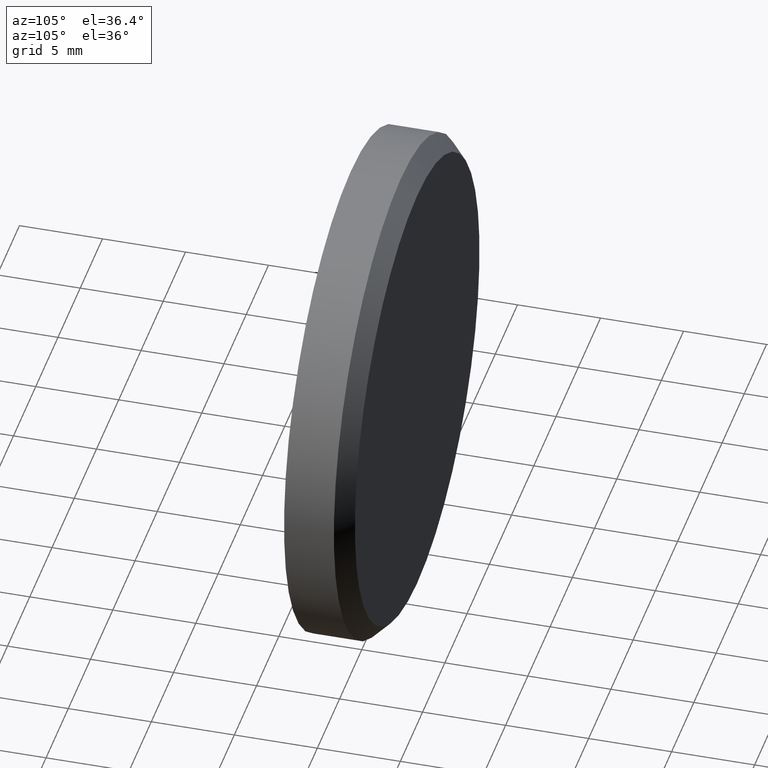
[diagram: clean part render]
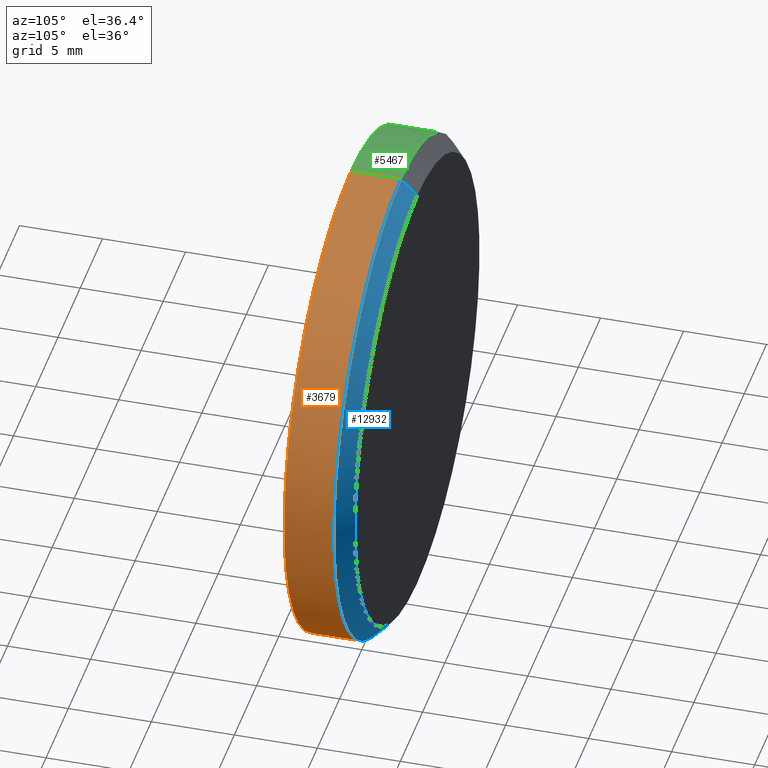
[diagram: same view with three faces highlighted in distinct colors, each labeled with its STEP entity id]
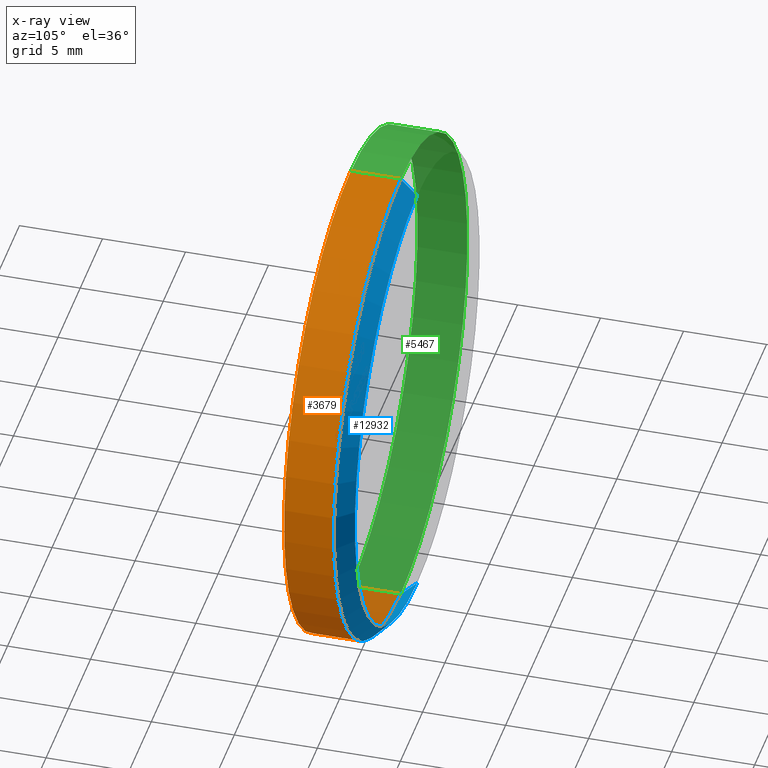
[diagram: x-ray of the same camera — body ghosted, the three highlighted faces saturated]
A machine part, auxiliary view with three faces highlighted in distinct colors.
The next image is the same camera in x-ray (body ghosted, the three faces saturated) — at least one of them is partly hidden behind the body in this view.
Their STEP definitions:

[orange] entity #3679 — the highlighted cylindrical surface (partial cylindrical patch) has radius 15 mm, axis along (-0, -1, -0).
#64 = EDGE_CURVE ( 'NONE', #2117, #8333, #3052, .T. ) ;
#224 = DIRECTION ( 'NONE',  ( 0.000000000000000000, 1.000000000000000000, 0.000000000000000000 ) ) ;
#1088 = ORIENTED_EDGE ( 'NONE', *, *, #7283, .T. ) ;
#1105 = CARTESIAN_POINT ( 'NONE',  ( 0.000000000000000000, 0.9999999999999852340, -15.00000000000000000 ) ) ;
#1200 = DIRECTION ( 'NONE',  ( -0.000000000000000000, -1.000000000000000000, -0.000000000000000000 ) ) ;
#1271 = CARTESIAN_POINT ( 'NONE',  ( 0.000000000000000000, -2.000000000000000000, -15.00000000000000000 ) ) ;
#1667 = AXIS2_PLACEMENT_3D ( 'NONE', #14471, #224, #5039 ) ;
#2117 = VERTEX_POINT ( 'NONE', #12398 ) ;
#2258 = CYLINDRICAL_SURFACE ( 'NONE', #3299, 15.00000000000000000 ) ;
#2356 = ORIENTED_EDGE ( 'NONE', *, *, #9711, .T. ) ;
#2721 = VECTOR ( 'NONE', #8684, 1000.000000000000000 ) ;
#3052 = LINE ( 'NONE', #6025, #12053 ) ;
#3170 = FACE_OUTER_BOUND ( 'NONE', #12584, .T. ) ;
#3299 = AXIS2_PLACEMENT_3D ( 'NONE', #10671, #1200, #9630 ) ;
#3679 = ADVANCED_FACE ( 'NONE', ( #3170 ), #2258, .T. ) ;
#4370 = DIRECTION ( 'NONE',  ( 0.000000000000000000, -1.000000000000000000, 0.000000000000000000 ) ) ;
#5039 = DIRECTION ( 'NONE',  ( 0.000000000000000000, 0.000000000000000000, 1.000000000000000000 ) ) ;
#5825 = AXIS2_PLACEMENT_3D ( 'NONE', #15065, #4370, #13906 ) ;
#6025 = CARTESIAN_POINT ( 'NONE',  ( 1.836970198721029589E-15, 2.000000000000000000, 15.00000000000000000 ) ) ;
#6122 = CIRCLE ( 'NONE', #5825, 15.00000000000000000 ) ;
#6128 = DIRECTION ( 'NONE',  ( -0.000000000000000000, -1.000000000000000000, -0.000000000000000000 ) ) ;
#6189 = CARTESIAN_POINT ( 'NONE',  ( 0.000000000000000000, 2.000000000000000000, -15.00000000000000000 ) ) ;
#6441 = CARTESIAN_POINT ( 'NONE',  ( 1.836970198721029589E-15, -2.000000000000000000, 15.00000000000000000 ) ) ;
#6640 = CIRCLE ( 'NONE', #1667, 15.00000000000000000 ) ;
#7283 = EDGE_CURVE ( 'NONE', #9954, #2117, #6122, .T. ) ;
#8333 = VERTEX_POINT ( 'NONE', #6441 ) ;
#8684 = DIRECTION ( 'NONE',  ( -0.000000000000000000, -1.000000000000000000, -0.000000000000000000 ) ) ;
#9630 = DIRECTION ( 'NONE',  ( 0.000000000000000000, 0.000000000000000000, -1.000000000000000000 ) ) ;
#9711 = EDGE_CURVE ( 'NONE', #8333, #13674, #6640, .T. ) ;
#9954 = VERTEX_POINT ( 'NONE', #1105 ) ;
#10124 = EDGE_CURVE ( 'NONE', #9954, #13674, #11486, .T. ) ;
#10671 = CARTESIAN_POINT ( 'NONE',  ( 0.000000000000000000, 2.000000000000000000, 0.000000000000000000 ) ) ;
#11486 = LINE ( 'NONE', #6189, #2721 ) ;
#12053 = VECTOR ( 'NONE', #6128, 1000.000000000000000 ) ;
#12398 = CARTESIAN_POINT ( 'NONE',  ( 1.836970198721029589E-15, 0.9999999999999852340, 15.00000000000000000 ) ) ;
#12584 = EDGE_LOOP ( 'NONE', ( #1088, #15137, #2356, #15217 ) ) ;
#13674 = VERTEX_POINT ( 'NONE', #1271 ) ;
#13906 = DIRECTION ( 'NONE',  ( 0.000000000000000000, 0.000000000000000000, 1.000000000000000000 ) ) ;
#14471 = CARTESIAN_POINT ( 'NONE',  ( 0.000000000000000000, -2.000000000000000000, 0.000000000000000000 ) ) ;
#15065 = CARTESIAN_POINT ( 'NONE',  ( 0.000000000000000000, 0.9999999999999852340, 0.000000000000000000 ) ) ;
#15137 = ORIENTED_EDGE ( 'NONE', *, *, #64, .T. ) ;
#15217 = ORIENTED_EDGE ( 'NONE', *, *, #10124, .F. ) ;

[blue] entity #12932 — the highlighted conical surface has half-angle 45 deg.
#462 = DIRECTION ( 'NONE',  ( 0.000000000000000000, 1.000000000000000000, 0.000000000000000000 ) ) ;
#658 = DIRECTION ( 'NONE',  ( 0.000000000000000000, -0.7071067811865493491, -0.7071067811865456854 ) ) ;
#858 = EDGE_CURVE ( 'NONE', #9654, #12066, #12225, .T. ) ;
#966 = CARTESIAN_POINT ( 'NONE',  ( 0.000000000000000000, 2.000000000000000000, 0.000000000000000000 ) ) ;
#1105 = CARTESIAN_POINT ( 'NONE',  ( 0.000000000000000000, 0.9999999999999852340, -15.00000000000000000 ) ) ;
#1880 = ORIENTED_EDGE ( 'NONE', *, *, #9075, .T. ) ;
#2017 = VECTOR ( 'NONE', #13527, 1000.000000000000114 ) ;
#2117 = VERTEX_POINT ( 'NONE', #12398 ) ;
#3490 = ORIENTED_EDGE ( 'NONE', *, *, #9241, .F. ) ;
#3595 = FACE_OUTER_BOUND ( 'NONE', #8045, .T. ) ;
#3839 = CARTESIAN_POINT ( 'NONE',  ( 1.714505518806293257E-15, 2.000000000000000000, 13.99999999999998934 ) ) ;
#4332 = CONICAL_SURFACE ( 'NONE', #10647, 13.99999999999998934, 0.7853981633974456145 ) ;
#4370 = DIRECTION ( 'NONE',  ( 0.000000000000000000, -1.000000000000000000, 0.000000000000000000 ) ) ;
#5742 = LINE ( 'NONE', #14775, #6677 ) ;
#5825 = AXIS2_PLACEMENT_3D ( 'NONE', #15065, #4370, #13906 ) ;
#6122 = CIRCLE ( 'NONE', #5825, 15.00000000000000000 ) ;
#6135 = CARTESIAN_POINT ( 'NONE',  ( 0.000000000000000000, 2.000000000000000000, -13.99999999999998934 ) ) ;
#6544 = ORIENTED_EDGE ( 'NONE', *, *, #858, .F. ) ;
#6677 = VECTOR ( 'NONE', #658, 1000.000000000000114 ) ;
#7248 = CARTESIAN_POINT ( 'NONE',  ( 1.775737858763661226E-15, 2.000000000000000000, 13.99999999999998934 ) ) ;
#7283 = EDGE_CURVE ( 'NONE', #9954, #2117, #6122, .T. ) ;
#8045 = EDGE_LOOP ( 'NONE', ( #6544, #1880, #12251, #3490 ) ) ;
#8823 = DIRECTION ( 'NONE',  ( 0.000000000000000000, 0.000000000000000000, 1.000000000000000000 ) ) ;
#9075 = EDGE_CURVE ( 'NONE', #9654, #2117, #13930, .T. ) ;
#9241 = EDGE_CURVE ( 'NONE', #12066, #9954, #5742, .T. ) ;
#9284 = DIRECTION ( 'NONE',  ( 0.000000000000000000, -1.000000000000000000, 0.000000000000000000 ) ) ;
#9654 = VERTEX_POINT ( 'NONE', #7248 ) ;
#9931 = CARTESIAN_POINT ( 'NONE',  ( 0.000000000000000000, 2.000000000000000000, 0.000000000000000000 ) ) ;
#9954 = VERTEX_POINT ( 'NONE', #1105 ) ;
#10647 = AXIS2_PLACEMENT_3D ( 'NONE', #966, #9284, #12084 ) ;
#12066 = VERTEX_POINT ( 'NONE', #6135 ) ;
#12084 = DIRECTION ( 'NONE',  ( 0.000000000000000000, 0.000000000000000000, -1.000000000000000000 ) ) ;
#12225 = CIRCLE ( 'NONE', #13310, 13.99999999999998934 ) ;
#12251 = ORIENTED_EDGE ( 'NONE', *, *, #7283, .F. ) ;
#12398 = CARTESIAN_POINT ( 'NONE',  ( 1.836970198721029589E-15, 0.9999999999999852340, 15.00000000000000000 ) ) ;
#12932 = ADVANCED_FACE ( 'NONE', ( #3595 ), #4332, .T. ) ;
#13310 = AXIS2_PLACEMENT_3D ( 'NONE', #9931, #462, #8823 ) ;
#13527 = DIRECTION ( 'NONE',  ( 8.659560562354909439E-17, -0.7071067811865493491, 0.7071067811865456854 ) ) ;
#13906 = DIRECTION ( 'NONE',  ( 0.000000000000000000, 0.000000000000000000, 1.000000000000000000 ) ) ;
#13930 = LINE ( 'NONE', #3839, #2017 ) ;
#14775 = CARTESIAN_POINT ( 'NONE',  ( 0.000000000000000000, 2.000000000000000000, -13.99999999999998934 ) ) ;
#15065 = CARTESIAN_POINT ( 'NONE',  ( 0.000000000000000000, 0.9999999999999852340, 0.000000000000000000 ) ) ;

[green] entity #5467 — the highlighted cylindrical surface (partial cylindrical patch) has radius 15 mm, axis along (-0, -1, -0).
#64 = EDGE_CURVE ( 'NONE', #2117, #8333, #3052, .T. ) ;
#274 = DIRECTION ( 'NONE',  ( 0.000000000000000000, 0.000000000000000000, 1.000000000000000000 ) ) ;
#883 = ORIENTED_EDGE ( 'NONE', *, *, #10124, .T. ) ;
#1105 = CARTESIAN_POINT ( 'NONE',  ( 0.000000000000000000, 0.9999999999999852340, -15.00000000000000000 ) ) ;
#1271 = CARTESIAN_POINT ( 'NONE',  ( 0.000000000000000000, -2.000000000000000000, -15.00000000000000000 ) ) ;
#1397 = CIRCLE ( 'NONE', #10431, 15.00000000000000000 ) ;
#2117 = VERTEX_POINT ( 'NONE', #12398 ) ;
#2721 = VECTOR ( 'NONE', #8684, 1000.000000000000000 ) ;
#3052 = LINE ( 'NONE', #6025, #12053 ) ;
#3952 = ORIENTED_EDGE ( 'NONE', *, *, #13698, .T. ) ;
#4511 = AXIS2_PLACEMENT_3D ( 'NONE', #6147, #7247, #11946 ) ;
#4637 = CYLINDRICAL_SURFACE ( 'NONE', #4511, 15.00000000000000000 ) ;
#5467 = ADVANCED_FACE ( 'NONE', ( #12859 ), #4637, .T. ) ;
#6025 = CARTESIAN_POINT ( 'NONE',  ( 1.836970198721029589E-15, 2.000000000000000000, 15.00000000000000000 ) ) ;
#6128 = DIRECTION ( 'NONE',  ( -0.000000000000000000, -1.000000000000000000, -0.000000000000000000 ) ) ;
#6147 = CARTESIAN_POINT ( 'NONE',  ( 0.000000000000000000, 2.000000000000000000, 0.000000000000000000 ) ) ;
#6189 = CARTESIAN_POINT ( 'NONE',  ( 0.000000000000000000, 2.000000000000000000, -15.00000000000000000 ) ) ;
#6441 = CARTESIAN_POINT ( 'NONE',  ( 1.836970198721029589E-15, -2.000000000000000000, 15.00000000000000000 ) ) ;
#7247 = DIRECTION ( 'NONE',  ( -0.000000000000000000, -1.000000000000000000, -0.000000000000000000 ) ) ;
#8119 = AXIS2_PLACEMENT_3D ( 'NONE', #11993, #9642, #11826 ) ;
#8333 = VERTEX_POINT ( 'NONE', #6441 ) ;
#8684 = DIRECTION ( 'NONE',  ( -0.000000000000000000, -1.000000000000000000, -0.000000000000000000 ) ) ;
#9642 = DIRECTION ( 'NONE',  ( 0.000000000000000000, 1.000000000000000000, 0.000000000000000000 ) ) ;
#9702 = CARTESIAN_POINT ( 'NONE',  ( 0.000000000000000000, 0.9999999999999852340, 0.000000000000000000 ) ) ;
#9802 = DIRECTION ( 'NONE',  ( 0.000000000000000000, -1.000000000000000000, 0.000000000000000000 ) ) ;
#9954 = VERTEX_POINT ( 'NONE', #1105 ) ;
#10014 = EDGE_CURVE ( 'NONE', #13674, #8333, #14646, .T. ) ;
#10124 = EDGE_CURVE ( 'NONE', #9954, #13674, #11486, .T. ) ;
#10431 = AXIS2_PLACEMENT_3D ( 'NONE', #9702, #9802, #274 ) ;
#10913 = ORIENTED_EDGE ( 'NONE', *, *, #10014, .T. ) ;
#11486 = LINE ( 'NONE', #6189, #2721 ) ;
#11826 = DIRECTION ( 'NONE',  ( 0.000000000000000000, 0.000000000000000000, 1.000000000000000000 ) ) ;
#11946 = DIRECTION ( 'NONE',  ( 0.000000000000000000, 0.000000000000000000, -1.000000000000000000 ) ) ;
#11993 = CARTESIAN_POINT ( 'NONE',  ( 0.000000000000000000, -2.000000000000000000, 0.000000000000000000 ) ) ;
#12053 = VECTOR ( 'NONE', #6128, 1000.000000000000000 ) ;
#12398 = CARTESIAN_POINT ( 'NONE',  ( 1.836970198721029589E-15, 0.9999999999999852340, 15.00000000000000000 ) ) ;
#12602 = EDGE_LOOP ( 'NONE', ( #13475, #3952, #883, #10913 ) ) ;
#12859 = FACE_OUTER_BOUND ( 'NONE', #12602, .T. ) ;
#13475 = ORIENTED_EDGE ( 'NONE', *, *, #64, .F. ) ;
#13674 = VERTEX_POINT ( 'NONE', #1271 ) ;
#13698 = EDGE_CURVE ( 'NONE', #2117, #9954, #1397, .T. ) ;
#14646 = CIRCLE ( 'NONE', #8119, 15.00000000000000000 ) ;